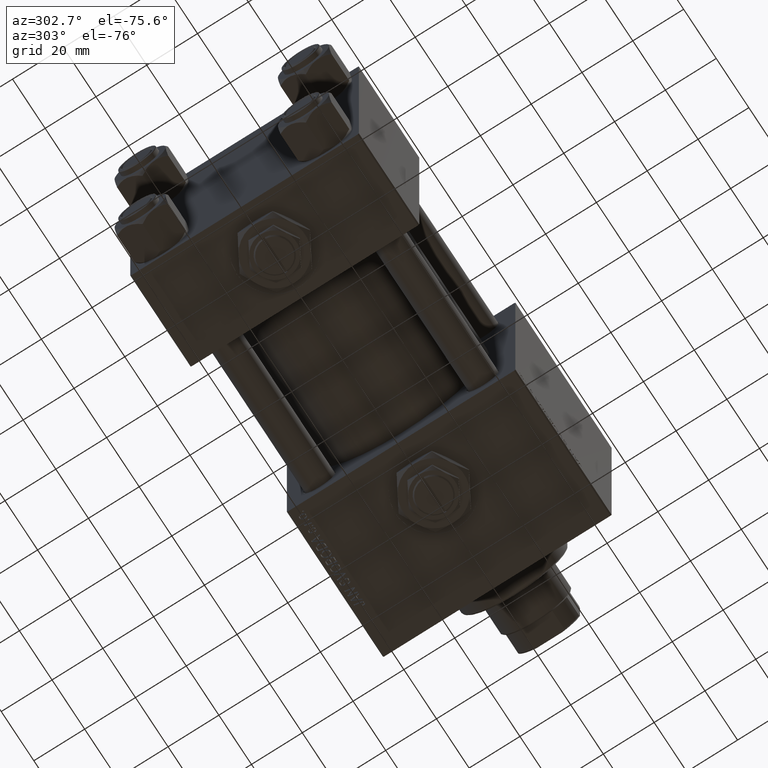
[diagram: clean part render]
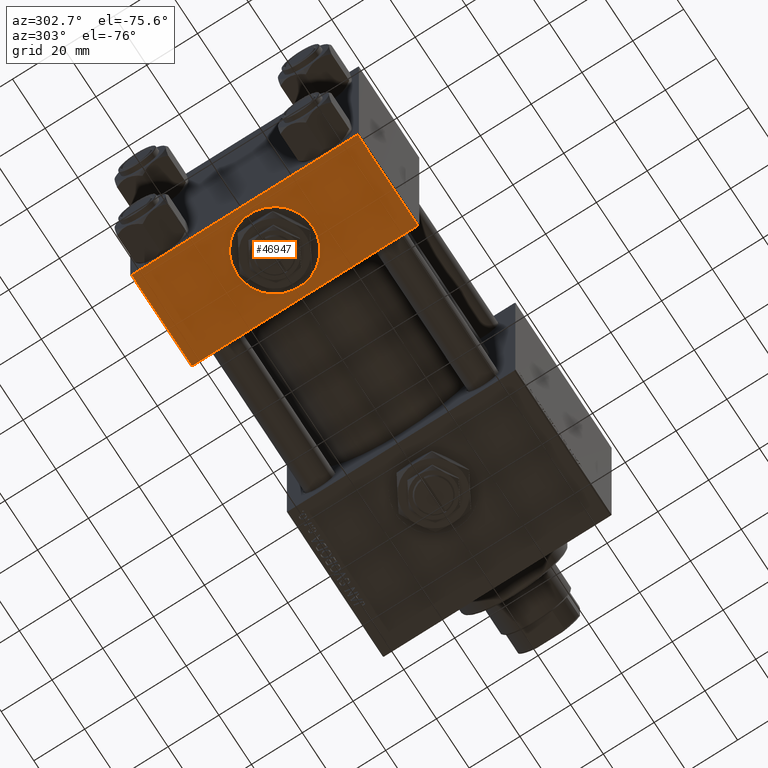
[diagram: same view with one face highlighted and labeled with its STEP entity id]
A machine part, auxiliary view. The second image highlights one B-rep face of the part: STEP entity #46947.
In plain terms, the highlighted planar face has unit normal (0, 0, -1).
Its self-contained STEP definition (entity closure, byte-faithful):
#640 = CARTESIAN_POINT ( 'NONE',  ( 0.000000000000000000, -44.49999999999995737, -45.00000000000000000 ) ) ;
#1102 = EDGE_CURVE ( 'NONE', #39520, #14125, #9063, .T. ) ;
#2578 = FACE_OUTER_BOUND ( 'NONE', #4108, .T. ) ;
#2810 = AXIS2_PLACEMENT_3D ( 'NONE', #21839, #6233, #29495 ) ;
#4108 = EDGE_LOOP ( 'NONE', ( #27234, #26399, #25300, #41904 ) ) ;
#5357 = CIRCLE ( 'NONE', #2810, 15.00000000000000000 ) ;
#5948 = EDGE_CURVE ( 'NONE', #46315, #45475, #22480, .T. ) ;
#6233 = DIRECTION ( 'NONE',  ( 0.000000000000000000, -1.734723475976806848E-16, -1.000000000000000000 ) ) ;
#6714 = EDGE_CURVE ( 'NONE', #46315, #7498, #19825, .T. ) ;
#7498 = VERTEX_POINT ( 'NONE', #640 ) ;
#7635 = CARTESIAN_POINT ( 'NONE',  ( 18.50000000000000711, -14.99999999999999645, -44.99999999999999289 ) ) ;
#8061 = DIRECTION ( 'NONE',  ( 0.000000000000000000, -1.734723475976806848E-16, -1.000000000000000000 ) ) ;
#9063 = CIRCLE ( 'NONE', #41142, 15.00000000000000000 ) ;
#12210 = CARTESIAN_POINT ( 'NONE',  ( 37.00000000000000000, 44.49999999999998579, -44.99999999999998579 ) ) ;
#12379 = CARTESIAN_POINT ( 'NONE',  ( 0.000000000000000000, -44.49999999999998579, -45.00000000000000000 ) ) ;
#13783 = EDGE_CURVE ( 'NONE', #45475, #47020, #18344, .T. ) ;
#14011 = CARTESIAN_POINT ( 'NONE',  ( 37.00000000000000000, 44.49999999999998579, -44.99999999999998579 ) ) ;
#14125 = VERTEX_POINT ( 'NONE', #7635 ) ;
#16763 = CARTESIAN_POINT ( 'NONE',  ( 18.50000000000000355, 3.999741585953584033E-15, -44.99999999999999289 ) ) ;
#18344 = LINE ( 'NONE', #22066, #18668 ) ;
#18668 = VECTOR ( 'NONE', #30237, 1000.000000000000000 ) ;
#18711 = DIRECTION ( 'NONE',  ( 0.000000000000000000, 1.541976423090495880E-16, -1.000000000000000000 ) ) ;
#19418 = EDGE_CURVE ( 'NONE', #14125, #39520, #5357, .T. ) ;
#19825 = LINE ( 'NONE', #44674, #24464 ) ;
#21839 = CARTESIAN_POINT ( 'NONE',  ( 18.50000000000000355, 3.999741585953584033E-15, -44.99999999999999289 ) ) ;
#22066 = CARTESIAN_POINT ( 'NONE',  ( 37.00000000000000000, 44.99999999999998579, -44.99999999999998579 ) ) ;
#22480 = LINE ( 'NONE', #14011, #24428 ) ;
#22501 = CARTESIAN_POINT ( 'NONE',  ( 0.000000000000000000, 44.49999999999998579, -44.99999999999998579 ) ) ;
#22688 = FACE_BOUND ( 'NONE', #44229, .T. ) ;
#23006 = DIRECTION ( 'NONE',  ( 1.000000000000000000, 0.000000000000000000, 0.000000000000000000 ) ) ;
#24428 = VECTOR ( 'NONE', #23006, 1000.000000000000000 ) ;
#24464 = VECTOR ( 'NONE', #40165, 1000.000000000000000 ) ;
#25300 = ORIENTED_EDGE ( 'NONE', *, *, #13783, .T. ) ;
#26386 = DIRECTION ( 'NONE',  ( 0.000000000000000000, 1.000000000000000000, 1.541976423090495880E-16 ) ) ;
#26399 = ORIENTED_EDGE ( 'NONE', *, *, #5948, .T. ) ;
#27234 = ORIENTED_EDGE ( 'NONE', *, *, #6714, .F. ) ;
#29109 = ORIENTED_EDGE ( 'NONE', *, *, #19418, .F. ) ;
#29495 = DIRECTION ( 'NONE',  ( 0.000000000000000000, 1.000000000000000000, 0.000000000000000000 ) ) ;
#29674 = CARTESIAN_POINT ( 'NONE',  ( 18.50000000000000355, 15.00000000000000355, -44.99999999999999289 ) ) ;
#30237 = DIRECTION ( 'NONE',  ( 0.000000000000000000, -1.000000000000000000, -1.541976423090495633E-16 ) ) ;
#30345 = CARTESIAN_POINT ( 'NONE',  ( 37.00000000000000000, 44.99999999999998579, -44.99999999999998579 ) ) ;
#34127 = ORIENTED_EDGE ( 'NONE', *, *, #1102, .F. ) ;
#39520 = VERTEX_POINT ( 'NONE', #29674 ) ;
#40165 = DIRECTION ( 'NONE',  ( 0.000000000000000000, -1.000000000000000000, -1.541976423090495633E-16 ) ) ;
#41142 = AXIS2_PLACEMENT_3D ( 'NONE', #16763, #8061, #44803 ) ;
#41269 = EDGE_CURVE ( 'NONE', #47020, #7498, #44127, .T. ) ;
#41904 = ORIENTED_EDGE ( 'NONE', *, *, #41269, .T. ) ;
#42526 = PLANE ( 'NONE',  #45432 ) ;
#44127 = LINE ( 'NONE', #12379, #50303 ) ;
#44229 = EDGE_LOOP ( 'NONE', ( #34127, #29109 ) ) ;
#44674 = CARTESIAN_POINT ( 'NONE',  ( 0.000000000000000000, 44.99999999999998579, -44.99999999999998579 ) ) ;
#44803 = DIRECTION ( 'NONE',  ( 0.000000000000000000, 1.000000000000000000, 0.000000000000000000 ) ) ;
#45432 = AXIS2_PLACEMENT_3D ( 'NONE', #30345, #18711, #26386 ) ;
#45475 = VERTEX_POINT ( 'NONE', #12210 ) ;
#46315 = VERTEX_POINT ( 'NONE', #22501 ) ;
#46947 = ADVANCED_FACE ( 'NONE', ( #22688, #2578 ), #42526, .T. ) ;
#47020 = VERTEX_POINT ( 'NONE', #51749 ) ;
#47564 = DIRECTION ( 'NONE',  ( -1.000000000000000000, 0.000000000000000000, 0.000000000000000000 ) ) ;
#50303 = VECTOR ( 'NONE', #47564, 1000.000000000000000 ) ;
#51749 = CARTESIAN_POINT ( 'NONE',  ( 37.00000000000000000, -44.49999999999995737, -45.00000000000000000 ) ) ;